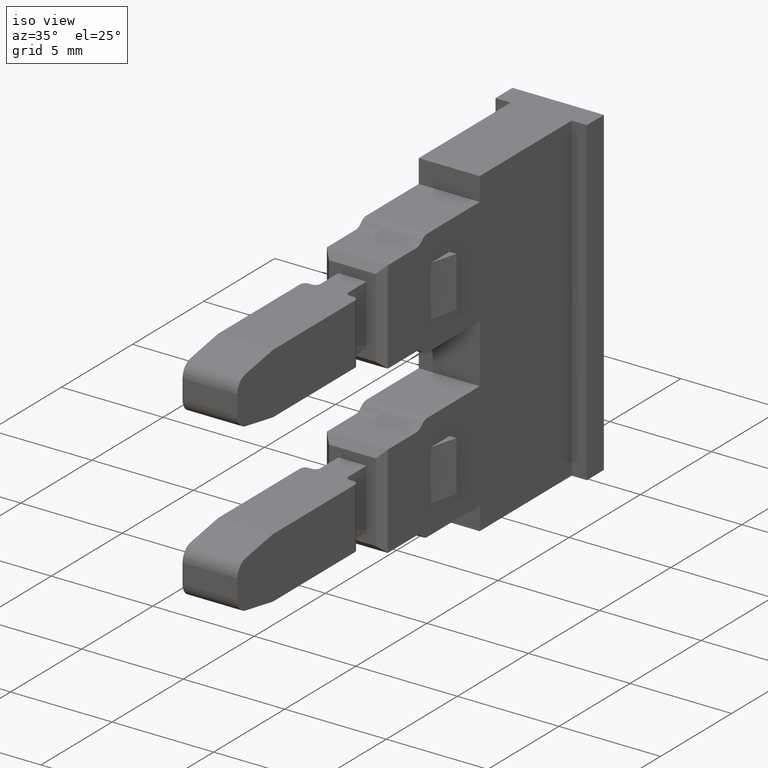
[diagram: clean part render]
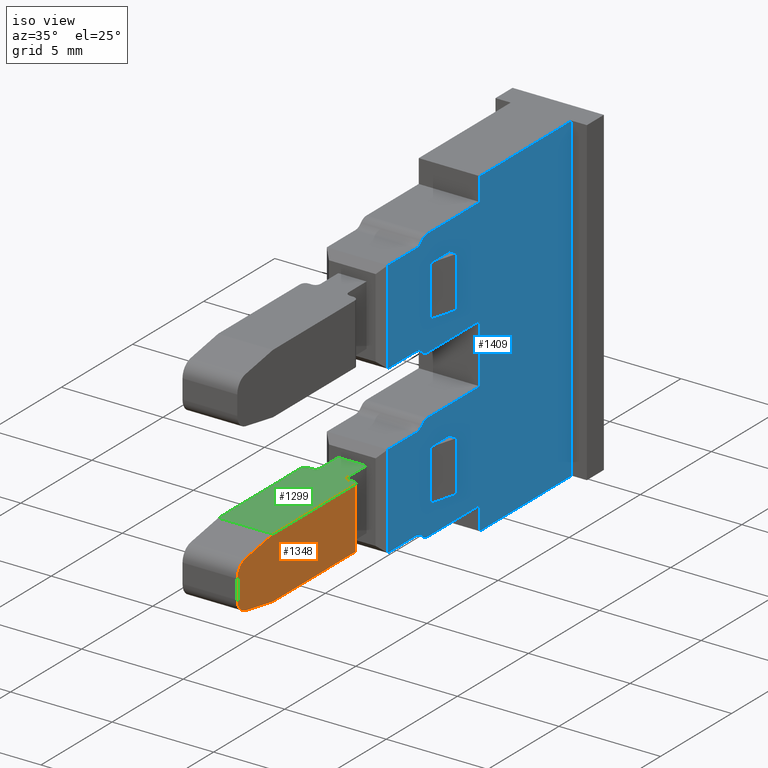
[diagram: same view with three faces highlighted in distinct colors, each labeled with its STEP entity id]
A machine part, iso view with three faces highlighted in distinct colors.
Their STEP definitions:

[orange] entity #1348 — the highlighted planar face has unit normal (-1, 0, -0).
#315 = LINE ( 'NONE', #342, #1774 ) ;
#342 = CARTESIAN_POINT ( 'NONE',  ( 112.0980534371292900, 235.8069065328611200, 160.5691701297483000 ) ) ;
#352 = DIRECTION ( 'NONE',  ( 1.030385130369684300E-041, -3.897577029284496700E-028, -1.000000000000000000 ) ) ;
#439 = DIRECTION ( 'NONE',  ( -1.000000000000000000, -2.643655590711542200E-014, -7.193572994224081300E-015 ) ) ;
#452 = DIRECTION ( 'NONE',  ( -1.982541115402047700E-014, 1.000000000000000000, 0.0000000000000000000 ) ) ;
#453 = CARTESIAN_POINT ( 'NONE',  ( 112.0980534371292800, 236.5069065328611400, 161.5104752290236800 ) ) ;
#481 = DIRECTION ( 'NONE',  ( -1.000000000000000000, -2.643655590711542200E-014, -7.193572994224081300E-015 ) ) ;
#484 = DIRECTION ( 'NONE',  ( -1.982541115402047700E-014, 1.000000000000000000, 0.0000000000000000000 ) ) ;
#494 = CARTESIAN_POINT ( 'NONE',  ( 112.0980534371292800, 236.5069065328611400, 160.5691701297483900 ) ) ;
#562 = PLANE ( 'NONE',  #1820 ) ;
#575 = DIRECTION ( 'NONE',  ( -1.000000000000000000, 3.142629004551421700E-014, -7.193572994222961100E-015 ) ) ;
#594 = FACE_OUTER_BOUND ( 'NONE', #2187, .T. ) ;
#597 = CARTESIAN_POINT ( 'NONE',  ( 112.0980534371293900, 244.7827890380865500, 183.7089333087244800 ) ) ;
#606 = DIRECTION ( 'NONE',  ( -3.142629004551421700E-014, -1.000000000000000000, 0.0000000000000000000 ) ) ;
#868 = CARTESIAN_POINT ( 'NONE',  ( 112.0980534371292900, 236.3853528084943600, 159.8798047026398600 ) ) ;
#874 = CARTESIAN_POINT ( 'NONE',  ( 112.0980534371292900, 235.8069065328611200, 161.5104752290236800 ) ) ;
#914 = CARTESIAN_POINT ( 'NONE',  ( 112.0980534371295200, 244.0815789080036500, 162.5398226793859600 ) ) ;
#919 = CARTESIAN_POINT ( 'NONE',  ( 112.0980534371293400, 238.3134866759712900, 162.5398226793859400 ) ) ;
#958 = CARTESIAN_POINT ( 'NONE',  ( 112.0980534371292800, 236.3853528084943900, 162.1998406561322400 ) ) ;
#959 = CARTESIAN_POINT ( 'NONE',  ( 112.0980534371292900, 235.8069065328611200, 160.5691701297483900 ) ) ;
#1001 = CARTESIAN_POINT ( 'NONE',  ( 112.0980534371295500, 244.0815789080036500, 159.5398226793861100 ) ) ;
#1006 = CARTESIAN_POINT ( 'NONE',  ( 112.0980534371293500, 238.3134866759718300, 159.5398226793861100 ) ) ;
#1077 = EDGE_CURVE ( 'NONE', #2633, #2613, #2689, .T. ) ;
#1082 = EDGE_CURVE ( 'NONE', #2595, #2633, #2261, .T. ) ;
#1101 = EDGE_CURVE ( 'NONE', #2587, #2595, #2325, .T. ) ;
#1128 = EDGE_CURVE ( 'NONE', #2581, #2587, #2395, .T. ) ;
#1149 = EDGE_CURVE ( 'NONE', #2613, #2534, #2455, .T. ) ;
#1298 = EDGE_CURVE ( 'NONE', #2536, #2544, #315, .T. ) ;
#1315 = EDGE_CURVE ( 'NONE', #2536, #2581, #1758, .T. ) ;
#1330 = EDGE_CURVE ( 'NONE', #2534, #2544, #1832, .T. ) ;
#1348 = ADVANCED_FACE ( 'NONE', ( #594 ), #562, .F. ) ;
#1494 = VECTOR ( 'NONE', #2268, 1000.000000000000000 ) ;
#1496 = VECTOR ( 'NONE', #2287, 1000.000000000000000 ) ;
#1535 = VECTOR ( 'NONE', #2427, 1000.000000000000100 ) ;
#1540 = VECTOR ( 'NONE', #2328, 1000.000000000000000 ) ;
#1581 = VECTOR ( 'NONE', #2466, 1000.000000000000100 ) ;
#1758 = CIRCLE ( 'NONE', #1762, 0.7000000000000061700 ) ;
#1762 = AXIS2_PLACEMENT_3D ( 'NONE', #453, #439, #452 ) ;
#1774 = VECTOR ( 'NONE', #352, 1000.000000000000000 ) ;
#1801 = AXIS2_PLACEMENT_3D ( 'NONE', #494, #481, #484 ) ;
#1820 = AXIS2_PLACEMENT_3D ( 'NONE', #597, #575, #606 ) ;
#1832 = CIRCLE ( 'NONE', #1801, 0.7000000000000061700 ) ;
#1894 = ORIENTED_EDGE ( 'NONE', *, *, #1315, .F. ) ;
#1897 = ORIENTED_EDGE ( 'NONE', *, *, #1101, .F. ) ;
#1899 = ORIENTED_EDGE ( 'NONE', *, *, #1149, .F. ) ;
#1902 = ORIENTED_EDGE ( 'NONE', *, *, #1128, .F. ) ;
#1910 = ORIENTED_EDGE ( 'NONE', *, *, #1298, .T. ) ;
#1911 = ORIENTED_EDGE ( 'NONE', *, *, #1077, .F. ) ;
#1937 = ORIENTED_EDGE ( 'NONE', *, *, #1082, .F. ) ;
#2187 = EDGE_LOOP ( 'NONE', ( #1902, #1894, #1910, #2892, #1899, #1911, #1937, #1897 ) ) ;
#2261 = LINE ( 'NONE', #2277, #1496 ) ;
#2268 = DIRECTION ( 'NONE',  ( -3.142629004551421700E-014, -1.000000000000000000, 0.0000000000000000000 ) ) ;
#2277 = CARTESIAN_POINT ( 'NONE',  ( 112.0980534371293700, 244.0815789080036500, 183.7089333087244800 ) ) ;
#2287 = DIRECTION ( 'NONE',  ( 7.193572994222961100E-015, -5.441398086523228100E-029, -1.000000000000000000 ) ) ;
#2289 = CARTESIAN_POINT ( 'NONE',  ( 112.0980534371295600, 244.7827890380865500, 159.5398226793861100 ) ) ;
#2325 = LINE ( 'NONE', #2343, #1540 ) ;
#2328 = DIRECTION ( 'NONE',  ( 3.142629004551421700E-014, 1.000000000000000000, -0.0000000000000000000 ) ) ;
#2343 = CARTESIAN_POINT ( 'NONE',  ( 112.0980534371295500, 244.7827890380865500, 162.5398226793859600 ) ) ;
#2395 = LINE ( 'NONE', #2426, #1535 ) ;
#2426 = CARTESIAN_POINT ( 'NONE',  ( 112.0980534371292800, 236.3853528084944200, 162.1998406561322400 ) ) ;
#2427 = DIRECTION ( 'NONE',  ( 2.835270570850653900E-014, 0.9848077530122268900, 0.1736481776668236700 ) ) ;
#2455 = LINE ( 'NONE', #2463, #1581 ) ;
#2463 = CARTESIAN_POINT ( 'NONE',  ( 112.0980534371293700, 238.3134866759715200, 159.5398226793861900 ) ) ;
#2466 = DIRECTION ( 'NONE',  ( -3.544088213562839200E-014, -0.9848077530122358900, 0.1736481776667719300 ) ) ;
#2534 = VERTEX_POINT ( 'NONE', #868 ) ;
#2536 = VERTEX_POINT ( 'NONE', #874 ) ;
#2544 = VERTEX_POINT ( 'NONE', #959 ) ;
#2581 = VERTEX_POINT ( 'NONE', #958 ) ;
#2587 = VERTEX_POINT ( 'NONE', #919 ) ;
#2595 = VERTEX_POINT ( 'NONE', #914 ) ;
#2613 = VERTEX_POINT ( 'NONE', #1006 ) ;
#2633 = VERTEX_POINT ( 'NONE', #1001 ) ;
#2689 = LINE ( 'NONE', #2289, #1494 ) ;
#2892 = ORIENTED_EDGE ( 'NONE', *, *, #1330, .F. ) ;

[blue] entity #1409 — the highlighted planar face has unit normal (1, 0, 0).
#1 = DIRECTION ( 'NONE',  ( 2.775557561562734800E-014, -1.000000000000000000, 0.0000000000000000000 ) ) ;
#2 = CARTESIAN_POINT ( 'NONE',  ( 112.2452529172786200, 249.5101602476015000, 171.5398226793865000 ) ) ;
#4 = CARTESIAN_POINT ( 'NONE',  ( 112.2452529172786800, 249.1566068570084800, 164.0933760699795100 ) ) ;
#7 = LINE ( 'NONE', #2, #1644 ) ;
#18 = DIRECTION ( 'NONE',  ( 2.643655590711540000E-014, -1.000000000000000000, -0.0000000000000000000 ) ) ;
#23 = DIRECTION ( 'NONE',  ( -0.0000000000000000000, -0.7071067811865150400, -0.7071067811865799900 ) ) ;
#24 = DIRECTION ( 'NONE',  ( -1.000000000000000000, -2.643655590711540000E-014, -7.193572994224081300E-015 ) ) ;
#28 = LINE ( 'NONE', #4, #1645 ) ;
#33 = CARTESIAN_POINT ( 'NONE',  ( 112.2452529172786900, 248.1959466852285100, 163.8398226793859700 ) ) ;
#47 = LINE ( 'NONE', #50, #1641 ) ;
#50 = CARTESIAN_POINT ( 'NONE',  ( 112.2452529172783200, 246.1815789080018800, 222.8398226793859700 ) ) ;
#52 = LINE ( 'NONE', #78, #1626 ) ;
#60 = CARTESIAN_POINT ( 'NONE',  ( 112.2452529172788300, 246.1815789080017400, 163.3398226793860300 ) ) ;
#61 = DIRECTION ( 'NONE',  ( 7.193572994224081300E-015, 1.901732946337204600E-028, -1.000000000000000000 ) ) ;
#62 = DIRECTION ( 'NONE',  ( -2.643655590711540000E-014, 1.000000000000000000, 0.0000000000000000000 ) ) ;
#78 = CARTESIAN_POINT ( 'NONE',  ( 112.2452529172786500, 249.5101602476015000, 166.5898226793864900 ) ) ;
#79 = LINE ( 'NONE', #82, #1630 ) ;
#82 = CARTESIAN_POINT ( 'NONE',  ( 112.2452529172785300, 252.6435672046369800, 175.4398226793854900 ) ) ;
#87 = DIRECTION ( 'NONE',  ( -0.0000000000000000000, 0.0000000000000000000, 1.000000000000000000 ) ) ;
#94 = CARTESIAN_POINT ( 'NONE',  ( 112.2452529172785900, 250.5101602476015900, 170.4898226793856700 ) ) ;
#96 = LINE ( 'NONE', #121, #1698 ) ;
#109 = DIRECTION ( 'NONE',  ( 2.775557561562734800E-014, -1.000000000000000000, 0.0000000000000000000 ) ) ;
#110 = DIRECTION ( 'NONE',  ( 2.775557561563659400E-014, -1.000000000000000000, 0.0000000000000000000 ) ) ;
#115 = CARTESIAN_POINT ( 'NONE',  ( 112.2452529172787600, 248.1959466852285100, 158.2398226793859800 ) ) ;
#116 = DIRECTION ( 'NONE',  ( -1.000000000000000000, -2.643655590711540000E-014, -7.193572994224081300E-015 ) ) ;
#117 = DIRECTION ( 'NONE',  ( 2.643655590711540000E-014, -1.000000000000000000, -0.0000000000000000000 ) ) ;
#121 = CARTESIAN_POINT ( 'NONE',  ( 112.2452529172786100, 249.5101602476015000, 173.0398226793859900 ) ) ;
#130 = CARTESIAN_POINT ( 'NONE',  ( 112.2452529172786800, 248.1959466852285100, 166.4398226793865100 ) ) ;
#132 = DIRECTION ( 'NONE',  ( -1.000000000000000000, -2.643655590711540000E-014, -7.193572994224081300E-015 ) ) ;
#137 = DIRECTION ( 'NONE',  ( -7.193572994224081300E-015, -1.901732946337204600E-028, 1.000000000000000000 ) ) ;
#144 = DIRECTION ( 'NONE',  ( -0.0000000000000000000, -1.000000000000000000, -0.0000000000000000000 ) ) ;
#145 = LINE ( 'NONE', #193, #1664 ) ;
#146 = LINE ( 'NONE', #170, #1693 ) ;
#169 = CARTESIAN_POINT ( 'NONE',  ( 112.2452529172779900, 259.1101602476019800, 222.8398226793859700 ) ) ;
#170 = CARTESIAN_POINT ( 'NONE',  ( 112.2452529172785800, 249.2101602476016400, 159.7898226793856800 ) ) ;
#174 = LINE ( 'NONE', #169, #1662 ) ;
#175 = LINE ( 'NONE', #208, #1686 ) ;
#177 = CARTESIAN_POINT ( 'NONE',  ( 112.2452529172786800, 249.5101602476015000, 163.6898226793860000 ) ) ;
#182 = DIRECTION ( 'NONE',  ( 2.643655590711540000E-014, -1.000000000000000000, -0.0000000000000000000 ) ) ;
#183 = CARTESIAN_POINT ( 'NONE',  ( 112.2452529172785300, 250.5101602476015900, 167.9898226793856700 ) ) ;
#187 = LINE ( 'NONE', #183, #1695 ) ;
#191 = LINE ( 'NONE', #251, #1690 ) ;
#193 = CARTESIAN_POINT ( 'NONE',  ( 112.2452529172786500, 249.5101602476015000, 166.9398226793865100 ) ) ;
#196 = DIRECTION ( 'NONE',  ( 0.0000000000000000000, 0.0000000000000000000, 1.000000000000000000 ) ) ;
#202 = LINE ( 'NONE', #177, #1665 ) ;
#205 = DIRECTION ( 'NONE',  ( -2.643655590711540000E-014, 1.000000000000000000, 0.0000000000000000000 ) ) ;
#208 = CARTESIAN_POINT ( 'NONE',  ( 112.2452529172787100, 249.5101602476015000, 158.7398226793860900 ) ) ;
#211 = LINE ( 'NONE', #266, #1704 ) ;
#219 = DIRECTION ( 'NONE',  ( -2.643655590711540000E-014, 1.000000000000000000, 0.0000000000000000000 ) ) ;
#227 = CARTESIAN_POINT ( 'NONE',  ( 112.2452529172786100, 249.5101602476015000, 171.8898226793864700 ) ) ;
#231 = DIRECTION ( 'NONE',  ( -0.0000000000000000000, -1.000000000000000000, -0.0000000000000000000 ) ) ;
#232 = CARTESIAN_POINT ( 'NONE',  ( 112.2452529172785800, 250.5101602476016500, 159.7898226793856800 ) ) ;
#233 = LINE ( 'NONE', #237, #1677 ) ;
#234 = DIRECTION ( 'NONE',  ( -2.775557561562888800E-014, 1.000000000000000000, 0.0000000000000000000 ) ) ;
#237 = CARTESIAN_POINT ( 'NONE',  ( 112.2452529172786800, 249.5101602476015000, 163.3398226793859700 ) ) ;
#239 = LINE ( 'NONE', #232, #1681 ) ;
#240 = DIRECTION ( 'NONE',  ( 2.643655590711540000E-014, -1.000000000000000000, -0.0000000000000000000 ) ) ;
#242 = CARTESIAN_POINT ( 'NONE',  ( 112.2452529172786800, 248.9601602476015500, 163.1898226793860000 ) ) ;
#243 = DIRECTION ( 'NONE',  ( -1.000000000000000000, -2.643655590711540000E-014, -7.193572994224081300E-015 ) ) ;
#250 = DIRECTION ( 'NONE',  ( -1.000000000000000000, -2.643655590711534900E-014, -7.193572994224081300E-015 ) ) ;
#251 = CARTESIAN_POINT ( 'NONE',  ( 112.2452529172785800, 249.2101602476016400, 162.2898226793856800 ) ) ;
#253 = DIRECTION ( 'NONE',  ( -0.0000000000000000000, -1.000000000000000000, -0.0000000000000000000 ) ) ;
#255 = DIRECTION ( 'NONE',  ( 0.0000000000000000000, 0.0000000000000000000, 1.000000000000000000 ) ) ;
#257 = LINE ( 'NONE', #227, #1666 ) ;
#259 = LINE ( 'NONE', #287, #1764 ) ;
#260 = CARTESIAN_POINT ( 'NONE',  ( 112.2452529172787200, 248.9601602476020000, 158.8898226793860100 ) ) ;
#263 = DIRECTION ( 'NONE',  ( 2.775557561562888800E-014, -1.000000000000000000, 0.0000000000000000000 ) ) ;
#264 = DIRECTION ( 'NONE',  ( 2.643655590711540000E-014, -1.000000000000000000, -0.0000000000000000000 ) ) ;
#266 = CARTESIAN_POINT ( 'NONE',  ( 112.2452529172785300, 249.2101602476015800, 167.9898226793856700 ) ) ;
#267 = DIRECTION ( 'NONE',  ( -2.775557561562888800E-014, 1.000000000000000000, 0.0000000000000000000 ) ) ;
#270 = DIRECTION ( 'NONE',  ( -1.000000000000000000, -2.643655590711534900E-014, -7.193572994224081300E-015 ) ) ;
#274 = CARTESIAN_POINT ( 'NONE',  ( 112.2452529172787200, 249.5101602476015000, 157.2398226793859500 ) ) ;
#285 = DIRECTION ( 'NONE',  ( -2.643655590711540000E-014, 1.000000000000000000, 0.0000000000000000000 ) ) ;
#287 = CARTESIAN_POINT ( 'NONE',  ( 112.2452529172786300, 252.6435672046369800, 154.8398226793870000 ) ) ;
#288 = DIRECTION ( 'NONE',  ( -0.0000000000000000000, 0.0000000000000000000, 1.000000000000000000 ) ) ;
#308 = CARTESIAN_POINT ( 'NONE',  ( 112.2452529172786600, 248.9601602476015500, 167.0898226793864900 ) ) ;
#309 = LINE ( 'NONE', #274, #1741 ) ;
#317 = LINE ( 'NONE', #321, #1749 ) ;
#321 = CARTESIAN_POINT ( 'NONE',  ( 112.2452529172785800, 249.2101602476016400, 159.7898226793856800 ) ) ;
#336 = DIRECTION ( 'NONE',  ( 0.0000000000000000000, 0.0000000000000000000, 1.000000000000000000 ) ) ;
#340 = LINE ( 'NONE', #356, #1728 ) ;
#353 = CARTESIAN_POINT ( 'NONE',  ( 112.2452529172785300, 249.2101602476015800, 167.9898226793856700 ) ) ;
#356 = CARTESIAN_POINT ( 'NONE',  ( 112.2452529172785300, 249.2101602476015800, 167.9898226793856700 ) ) ;
#358 = DIRECTION ( 'NONE',  ( 0.0000000000000000000, 0.0000000000000000000, 1.000000000000000000 ) ) ;
#420 = CARTESIAN_POINT ( 'NONE',  ( 112.2452529172785300, 249.2101602476015800, 170.4898226793856700 ) ) ;
#426 = DIRECTION ( 'NONE',  ( -0.0000000000000000000, -1.000000000000000000, -0.0000000000000000000 ) ) ;
#454 = CARTESIAN_POINT ( 'NONE',  ( 112.2452529172785300, 252.6435672046369800, 171.8898226793864700 ) ) ;
#456 = LINE ( 'NONE', #420, #1740 ) ;
#486 = CARTESIAN_POINT ( 'NONE',  ( 112.2452529172787100, 249.5101602476015000, 158.3898226793860100 ) ) ;
#499 = DIRECTION ( 'NONE',  ( -2.643655590711540000E-014, 1.000000000000000000, 0.0000000000000000000 ) ) ;
#503 = LINE ( 'NONE', #486, #1808 ) ;
#573 = DIRECTION ( 'NONE',  ( 7.193572994224081300E-015, 1.901732946337204600E-028, -1.000000000000000000 ) ) ;
#593 = CARTESIAN_POINT ( 'NONE',  ( 112.2452529172783200, 246.1815789080016800, 222.8398226793859700 ) ) ;
#595 = LINE ( 'NONE', #593, #1811 ) ;
#695 = CARTESIAN_POINT ( 'NONE',  ( 112.2452529172785800, 249.2101602476016400, 159.7898226793856800 ) ) ;
#864 = FACE_BOUND ( 'NONE', #2237, .T. ) ;
#866 = DIRECTION ( 'NONE',  ( -2.643655590711540000E-014, 1.000000000000000000, 0.0000000000000000000 ) ) ;
#875 = FACE_OUTER_BOUND ( 'NONE', #2157, .T. ) ;
#877 = CARTESIAN_POINT ( 'NONE',  ( 112.2452529172782400, 249.5101602476015000, 222.8398226793859700 ) ) ;
#884 = FACE_BOUND ( 'NONE', #2203, .T. ) ;
#890 = DIRECTION ( 'NONE',  ( 1.000000000000000000, 2.643655590711540000E-014, 7.193572994224081300E-015 ) ) ;
#899 = PLANE ( 'NONE',  #1866 ) ;
#921 = CARTESIAN_POINT ( 'NONE',  ( 112.2452529172785200, 252.6435672046369800, 173.0398226793859900 ) ) ;
#930 = CARTESIAN_POINT ( 'NONE',  ( 112.2452529172786200, 248.6066068570087000, 171.7433760699797500 ) ) ;
#951 = CARTESIAN_POINT ( 'NONE',  ( 112.2452529172786800, 248.6066068570083600, 166.7362692887932100 ) ) ;
#956 = CARTESIAN_POINT ( 'NONE',  ( 112.2452529172787300, 246.1815789080018800, 171.5398226793864800 ) ) ;
#966 = CARTESIAN_POINT ( 'NONE',  ( 112.2452529172783500, 259.1101602476019800, 173.0398226793859900 ) ) ;
#967 = CARTESIAN_POINT ( 'NONE',  ( 112.2452529172785800, 249.2101602476016400, 162.2898226793856800 ) ) ;
#969 = CARTESIAN_POINT ( 'NONE',  ( 112.2452529172786900, 248.1959466852285100, 166.9398226793865100 ) ) ;
#972 = CARTESIAN_POINT ( 'NONE',  ( 112.2452529172787300, 248.6066068570087600, 158.5362692887926500 ) ) ;
#975 = CARTESIAN_POINT ( 'NONE',  ( 112.2452529172787600, 248.1959466852285100, 158.7398226793860400 ) ) ;
#979 = CARTESIAN_POINT ( 'NONE',  ( 112.2452529172786300, 252.6435672046369800, 157.2398226793859500 ) ) ;
#984 = CARTESIAN_POINT ( 'NONE',  ( 112.2452529172786500, 250.5101602476016500, 162.2898226793856800 ) ) ;
#986 = CARTESIAN_POINT ( 'NONE',  ( 112.2452529172787500, 248.5495000758218400, 158.5933760699792600 ) ) ;
#988 = CARTESIAN_POINT ( 'NONE',  ( 112.2452529172786600, 248.5495000758219000, 166.7933760699797300 ) ) ;
#989 = CARTESIAN_POINT ( 'NONE',  ( 112.2452529172786300, 248.1959466852284800, 171.5398226793865000 ) ) ;
#996 = CARTESIAN_POINT ( 'NONE',  ( 112.2452529172785900, 252.6435672046369800, 163.6898226793860000 ) ) ;
#997 = CARTESIAN_POINT ( 'NONE',  ( 112.2452529172786900, 248.5495000758219000, 163.4862692887928400 ) ) ;
#999 = CARTESIAN_POINT ( 'NONE',  ( 112.2452529172786800, 246.1815789080018500, 166.9398226793865100 ) ) ;
#1002 = CARTESIAN_POINT ( 'NONE',  ( 112.2452529172786200, 248.5495000758218400, 171.6862692887932600 ) ) ;
#1007 = CARTESIAN_POINT ( 'NONE',  ( 112.2452529172785300, 249.2101602476015800, 170.4898226793856700 ) ) ;
#1009 = CARTESIAN_POINT ( 'NONE',  ( 112.2452529172787200, 248.9601602476019800, 158.3898226793860100 ) ) ;
#1011 = CARTESIAN_POINT ( 'NONE',  ( 112.2452529172786800, 248.6066068570083000, 163.5433760699792700 ) ) ;
#1014 = CARTESIAN_POINT ( 'NONE',  ( 112.2452529172786200, 248.9601602476020000, 171.8898226793864700 ) ) ;
#1015 = CARTESIAN_POINT ( 'NONE',  ( 112.2452529172785200, 259.1101602476019800, 157.2398226793859500 ) ) ;
#1029 = CARTESIAN_POINT ( 'NONE',  ( 112.2452529172785300, 250.5101602476015900, 167.9898226793856700 ) ) ;
#1032 = DIRECTION ( 'NONE',  ( -0.0000000000000000000, -0.7071067811866451600, -0.7071067811864498700 ) ) ;
#1035 = DIRECTION ( 'NONE',  ( -0.0000000000000000000, 0.7071067811866451600, -0.7071067811864498700 ) ) ;
#1036 = CARTESIAN_POINT ( 'NONE',  ( 112.2452529172781700, 252.6435672046369800, 222.8398226793859700 ) ) ;
#1046 = DIRECTION ( 'NONE',  ( 7.193572994224081300E-015, 1.901732946337204600E-028, -1.000000000000000000 ) ) ;
#1050 = CARTESIAN_POINT ( 'NONE',  ( 112.2452529172786200, 248.1959466852285100, 172.0398226793865000 ) ) ;
#1051 = LINE ( 'NONE', #1073, #1593 ) ;
#1056 = DIRECTION ( 'NONE',  ( 2.775557561563659400E-014, -1.000000000000000000, 0.0000000000000000000 ) ) ;
#1062 = LINE ( 'NONE', #1069, #1622 ) ;
#1067 = DIRECTION ( 'NONE',  ( -1.000000000000000000, -2.643655590711540000E-014, -7.193572994224081300E-015 ) ) ;
#1069 = CARTESIAN_POINT ( 'NONE',  ( 112.2452529172786200, 249.1566068570084800, 172.2933760699795000 ) ) ;
#1073 = CARTESIAN_POINT ( 'NONE',  ( 112.2452529172787500, 249.1566068570084800, 157.9862692887930100 ) ) ;
#1074 = LINE ( 'NONE', #1036, #1596 ) ;
#1125 = EDGE_CURVE ( 'NONE', #2642, #2577, #2399, .T. ) ;
#1163 = EDGE_CURVE ( 'NONE', #2561, #2652, #1590, .T. ) ;
#1170 = EDGE_CURVE ( 'NONE', #2605, #2612, #1051, .T. ) ;
#1172 = EDGE_CURVE ( 'NONE', #2700, #2630, #1074, .T. ) ;
#1175 = EDGE_CURVE ( 'NONE', #2615, #2609, #1595, .T. ) ;
#1180 = EDGE_CURVE ( 'NONE', #2561, #2615, #1062, .T. ) ;
#1182 = EDGE_CURVE ( 'NONE', #2607, #2692, #1646, .T. ) ;
#1187 = EDGE_CURVE ( 'NONE', #2609, #2566, #7, .T. ) ;
#1189 = EDGE_CURVE ( 'NONE', #2622, #2607, #28, .T. ) ;
#1199 = EDGE_CURVE ( 'NONE', #2566, #2629, #47, .T. ) ;
#1208 = EDGE_CURVE ( 'NONE', #2699, #2700, #52, .T. ) ;
#1210 = EDGE_CURVE ( 'NONE', #2678, #2601, #79, .T. ) ;
#1214 = EDGE_CURVE ( 'NONE', #2661, #2642, #1643, .T. ) ;
#1216 = EDGE_CURVE ( 'NONE', #2647, #2601, #96, .T. ) ;
#1221 = EDGE_CURVE ( 'NONE', #2668, #2605, #1696, .T. ) ;
#1230 = EDGE_CURVE ( 'NONE', #2610, #2647, #174, .T. ) ;
#1232 = EDGE_CURVE ( 'NONE', #2702, #2691, #146, .T. ) ;
#1239 = EDGE_CURVE ( 'NONE', #2629, #2661, #145, .T. ) ;
#1242 = EDGE_CURVE ( 'NONE', #2693, #2668, #175, .T. ) ;
#1245 = EDGE_CURVE ( 'NONE', #2630, #2697, #202, .T. ) ;
#1248 = EDGE_CURVE ( 'NONE', #2655, #2674, #187, .T. ) ;
#1254 = EDGE_CURVE ( 'NONE', #2671, #2654, #191, .T. ) ;
#1255 = EDGE_CURVE ( 'NONE', #2655, #2676, #211, .T. ) ;
#1261 = EDGE_CURVE ( 'NONE', #2648, #2612, #1667, .T. ) ;
#1262 = EDGE_CURVE ( 'NONE', #2622, #2697, #1674, .T. ) ;
#1263 = EDGE_CURVE ( 'NONE', #2678, #2652, #257, .T. ) ;
#1265 = EDGE_CURVE ( 'NONE', #2702, #2671, #239, .T. ) ;
#1268 = EDGE_CURVE ( 'NONE', #2692, #2673, #233, .T. ) ;
#1272 = EDGE_CURVE ( 'NONE', #2675, #2610, #309, .T. ) ;
#1278 = EDGE_CURVE ( 'NONE', #2675, #2705, #259, .T. ) ;
#1283 = EDGE_CURVE ( 'NONE', #2699, #2577, #1744, .T. ) ;
#1290 = EDGE_CURVE ( 'NONE', #2676, #2625, #340, .T. ) ;
#1295 = EDGE_CURVE ( 'NONE', #2691, #2654, #317, .T. ) ;
#1316 = EDGE_CURVE ( 'NONE', #2674, #2625, #456, .T. ) ;
#1329 = EDGE_CURVE ( 'NONE', #2648, #2705, #503, .T. ) ;
#1351 = EDGE_CURVE ( 'NONE', #2673, #2693, #595, .T. ) ;
#1409 = ADVANCED_FACE ( 'NONE', ( #884, #864, #875 ), #899, .T. ) ;
#1451 = CARTESIAN_POINT ( 'NONE',  ( 112.2452529172785600, 252.6435672046369800, 166.5898226793864900 ) ) ;
#1454 = CARTESIAN_POINT ( 'NONE',  ( 112.2452529172786200, 252.6435672046369800, 158.3898226793860100 ) ) ;
#1459 = CARTESIAN_POINT ( 'NONE',  ( 112.2452529172786900, 248.9601602476015500, 163.6898226793860000 ) ) ;
#1470 = CARTESIAN_POINT ( 'NONE',  ( 112.2452529172787500, 246.1815789080018000, 158.7398226793860900 ) ) ;
#1474 = CARTESIAN_POINT ( 'NONE',  ( 112.2452529172787100, 248.1959466852284800, 163.3398226793859700 ) ) ;
#1485 = CARTESIAN_POINT ( 'NONE',  ( 112.2452529172785800, 250.5101602476016500, 159.7898226793856800 ) ) ;
#1487 = CARTESIAN_POINT ( 'NONE',  ( 112.2452529172786600, 248.9601602476015500, 166.5898226793864900 ) ) ;
#1523 = VECTOR ( 'NONE', #2423, 1000.000000000000000 ) ;
#1573 = AXIS2_PLACEMENT_3D ( 'NONE', #2523, #2505, #2507 ) ;
#1590 = CIRCLE ( 'NONE', #1573, 0.5000000000000004400 ) ;
#1593 = VECTOR ( 'NONE', #1035, 1000.000000000000000 ) ;
#1595 = CIRCLE ( 'NONE', #1598, 0.4999999999998616700 ) ;
#1596 = VECTOR ( 'NONE', #1046, 1000.000000000000000 ) ;
#1598 = AXIS2_PLACEMENT_3D ( 'NONE', #1050, #1067, #1056 ) ;
#1622 = VECTOR ( 'NONE', #1032, 1000.000000000000000 ) ;
#1626 = VECTOR ( 'NONE', #62, 1000.000000000000000 ) ;
#1630 = VECTOR ( 'NONE', #87, 1000.000000000000000 ) ;
#1634 = AXIS2_PLACEMENT_3D ( 'NONE', #33, #24, #1 ) ;
#1641 = VECTOR ( 'NONE', #61, 1000.000000000000000 ) ;
#1643 = CIRCLE ( 'NONE', #1659, 0.5000000000000282000 ) ;
#1644 = VECTOR ( 'NONE', #18, 1000.000000000000000 ) ;
#1645 = VECTOR ( 'NONE', #23, 1000.000000000000000 ) ;
#1646 = CIRCLE ( 'NONE', #1634, 0.5000000000000282000 ) ;
#1659 = AXIS2_PLACEMENT_3D ( 'NONE', #130, #116, #109 ) ;
#1662 = VECTOR ( 'NONE', #137, 1000.000000000000000 ) ;
#1664 = VECTOR ( 'NONE', #205, 1000.000000000000000 ) ;
#1665 = VECTOR ( 'NONE', #182, 1000.000000000000000 ) ;
#1666 = VECTOR ( 'NONE', #264, 1000.000000000000000 ) ;
#1667 = CIRCLE ( 'NONE', #1670, 0.5000000000000004400 ) ;
#1670 = AXIS2_PLACEMENT_3D ( 'NONE', #260, #243, #263 ) ;
#1674 = CIRCLE ( 'NONE', #1675, 0.5000000000000004400 ) ;
#1675 = AXIS2_PLACEMENT_3D ( 'NONE', #242, #250, #234 ) ;
#1677 = VECTOR ( 'NONE', #240, 1000.000000000000000 ) ;
#1679 = AXIS2_PLACEMENT_3D ( 'NONE', #115, #132, #110 ) ;
#1681 = VECTOR ( 'NONE', #255, 1000.000000000000000 ) ;
#1686 = VECTOR ( 'NONE', #219, 1000.000000000000000 ) ;
#1690 = VECTOR ( 'NONE', #231, 1000.000000000000000 ) ;
#1693 = VECTOR ( 'NONE', #144, 1000.000000000000000 ) ;
#1695 = VECTOR ( 'NONE', #196, 1000.000000000000000 ) ;
#1696 = CIRCLE ( 'NONE', #1679, 0.4999999999998616700 ) ;
#1698 = VECTOR ( 'NONE', #117, 1000.000000000000000 ) ;
#1704 = VECTOR ( 'NONE', #253, 1000.000000000000000 ) ;
#1713 = AXIS2_PLACEMENT_3D ( 'NONE', #308, #270, #267 ) ;
#1728 = VECTOR ( 'NONE', #336, 1000.000000000000000 ) ;
#1740 = VECTOR ( 'NONE', #426, 1000.000000000000000 ) ;
#1741 = VECTOR ( 'NONE', #285, 1000.000000000000000 ) ;
#1744 = CIRCLE ( 'NONE', #1713, 0.5000000000000004400 ) ;
#1749 = VECTOR ( 'NONE', #358, 1000.000000000000000 ) ;
#1764 = VECTOR ( 'NONE', #288, 1000.000000000000000 ) ;
#1808 = VECTOR ( 'NONE', #499, 1000.000000000000000 ) ;
#1811 = VECTOR ( 'NONE', #573, 1000.000000000000000 ) ;
#1866 = AXIS2_PLACEMENT_3D ( 'NONE', #877, #890, #866 ) ;
#2157 = EDGE_LOOP ( 'NONE', ( #2744, #2756, #2757, #2748, #2722, #2685, #2707, #2715, #2755, #2711, #2734, #2759, #2723, #2724, #2760, #2658, #2741, #2729, #2737, #2740, #2719, #2732, #2728, #2698, #2716, #2742, #2713, #2664 ) ) ;
#2203 = EDGE_LOOP ( 'NONE', ( #2752, #2727, #2663, #2721 ) ) ;
#2237 = EDGE_LOOP ( 'NONE', ( #2739, #2733, #2763, #2720 ) ) ;
#2399 = LINE ( 'NONE', #2420, #1523 ) ;
#2420 = CARTESIAN_POINT ( 'NONE',  ( 112.2452529172786600, 249.1566068570084800, 166.1862692887930600 ) ) ;
#2423 = DIRECTION ( 'NONE',  ( -0.0000000000000000000, 0.7071067811865150400, -0.7071067811865799900 ) ) ;
#2505 = DIRECTION ( 'NONE',  ( -1.000000000000000000, -2.643655590711540000E-014, -7.193572994224081300E-015 ) ) ;
#2507 = DIRECTION ( 'NONE',  ( 2.775557561562888800E-014, -1.000000000000000000, 0.0000000000000000000 ) ) ;
#2523 = CARTESIAN_POINT ( 'NONE',  ( 112.2452529172786200, 248.9601602476020000, 171.3898226793865000 ) ) ;
#2561 = VERTEX_POINT ( 'NONE', #930 ) ;
#2566 = VERTEX_POINT ( 'NONE', #956 ) ;
#2577 = VERTEX_POINT ( 'NONE', #951 ) ;
#2601 = VERTEX_POINT ( 'NONE', #921 ) ;
#2605 = VERTEX_POINT ( 'NONE', #986 ) ;
#2607 = VERTEX_POINT ( 'NONE', #997 ) ;
#2609 = VERTEX_POINT ( 'NONE', #989 ) ;
#2610 = VERTEX_POINT ( 'NONE', #1015 ) ;
#2612 = VERTEX_POINT ( 'NONE', #972 ) ;
#2615 = VERTEX_POINT ( 'NONE', #1002 ) ;
#2622 = VERTEX_POINT ( 'NONE', #1011 ) ;
#2625 = VERTEX_POINT ( 'NONE', #1007 ) ;
#2629 = VERTEX_POINT ( 'NONE', #999 ) ;
#2630 = VERTEX_POINT ( 'NONE', #996 ) ;
#2642 = VERTEX_POINT ( 'NONE', #988 ) ;
#2647 = VERTEX_POINT ( 'NONE', #966 ) ;
#2648 = VERTEX_POINT ( 'NONE', #1009 ) ;
#2652 = VERTEX_POINT ( 'NONE', #1014 ) ;
#2654 = VERTEX_POINT ( 'NONE', #967 ) ;
#2655 = VERTEX_POINT ( 'NONE', #1029 ) ;
#2658 = ORIENTED_EDGE ( 'NONE', *, *, #1125, .T. ) ;
#2661 = VERTEX_POINT ( 'NONE', #969 ) ;
#2663 = ORIENTED_EDGE ( 'NONE', *, *, #1254, .F. ) ;
#2664 = ORIENTED_EDGE ( 'NONE', *, *, #1170, .T. ) ;
#2668 = VERTEX_POINT ( 'NONE', #975 ) ;
#2671 = VERTEX_POINT ( 'NONE', #984 ) ;
#2673 = VERTEX_POINT ( 'NONE', #60 ) ;
#2674 = VERTEX_POINT ( 'NONE', #94 ) ;
#2675 = VERTEX_POINT ( 'NONE', #979 ) ;
#2676 = VERTEX_POINT ( 'NONE', #353 ) ;
#2678 = VERTEX_POINT ( 'NONE', #454 ) ;
#2685 = ORIENTED_EDGE ( 'NONE', *, *, #1216, .T. ) ;
#2691 = VERTEX_POINT ( 'NONE', #695 ) ;
#2692 = VERTEX_POINT ( 'NONE', #1474 ) ;
#2693 = VERTEX_POINT ( 'NONE', #1470 ) ;
#2697 = VERTEX_POINT ( 'NONE', #1459 ) ;
#2698 = ORIENTED_EDGE ( 'NONE', *, *, #1268, .T. ) ;
#2699 = VERTEX_POINT ( 'NONE', #1487 ) ;
#2700 = VERTEX_POINT ( 'NONE', #1451 ) ;
#2702 = VERTEX_POINT ( 'NONE', #1485 ) ;
#2705 = VERTEX_POINT ( 'NONE', #1454 ) ;
#2707 = ORIENTED_EDGE ( 'NONE', *, *, #1210, .F. ) ;
#2711 = ORIENTED_EDGE ( 'NONE', *, *, #1180, .T. ) ;
#2713 = ORIENTED_EDGE ( 'NONE', *, *, #1221, .T. ) ;
#2715 = ORIENTED_EDGE ( 'NONE', *, *, #1263, .T. ) ;
#2716 = ORIENTED_EDGE ( 'NONE', *, *, #1351, .T. ) ;
#2719 = ORIENTED_EDGE ( 'NONE', *, *, #1262, .F. ) ;
#2720 = ORIENTED_EDGE ( 'NONE', *, *, #1248, .F. ) ;
#2721 = ORIENTED_EDGE ( 'NONE', *, *, #1265, .F. ) ;
#2722 = ORIENTED_EDGE ( 'NONE', *, *, #1230, .T. ) ;
#2723 = ORIENTED_EDGE ( 'NONE', *, *, #1199, .T. ) ;
#2724 = ORIENTED_EDGE ( 'NONE', *, *, #1239, .T. ) ;
#2727 = ORIENTED_EDGE ( 'NONE', *, *, #1295, .T. ) ;
#2728 = ORIENTED_EDGE ( 'NONE', *, *, #1182, .T. ) ;
#2729 = ORIENTED_EDGE ( 'NONE', *, *, #1208, .T. ) ;
#2732 = ORIENTED_EDGE ( 'NONE', *, *, #1189, .T. ) ;
#2733 = ORIENTED_EDGE ( 'NONE', *, *, #1290, .T. ) ;
#2734 = ORIENTED_EDGE ( 'NONE', *, *, #1175, .T. ) ;
#2737 = ORIENTED_EDGE ( 'NONE', *, *, #1172, .T. ) ;
#2739 = ORIENTED_EDGE ( 'NONE', *, *, #1255, .T. ) ;
#2740 = ORIENTED_EDGE ( 'NONE', *, *, #1245, .T. ) ;
#2741 = ORIENTED_EDGE ( 'NONE', *, *, #1283, .F. ) ;
#2742 = ORIENTED_EDGE ( 'NONE', *, *, #1242, .T. ) ;
#2744 = ORIENTED_EDGE ( 'NONE', *, *, #1261, .F. ) ;
#2748 = ORIENTED_EDGE ( 'NONE', *, *, #1272, .T. ) ;
#2752 = ORIENTED_EDGE ( 'NONE', *, *, #1232, .T. ) ;
#2755 = ORIENTED_EDGE ( 'NONE', *, *, #1163, .F. ) ;
#2756 = ORIENTED_EDGE ( 'NONE', *, *, #1329, .T. ) ;
#2757 = ORIENTED_EDGE ( 'NONE', *, *, #1278, .F. ) ;
#2759 = ORIENTED_EDGE ( 'NONE', *, *, #1187, .T. ) ;
#2760 = ORIENTED_EDGE ( 'NONE', *, *, #1214, .T. ) ;
#2763 = ORIENTED_EDGE ( 'NONE', *, *, #1316, .F. ) ;

[green] entity #1299 — the highlighted planar face has unit normal (0, 0, -1).
#350 = FACE_OUTER_BOUND ( 'NONE', #2168, .T. ) ;
#359 = CARTESIAN_POINT ( 'NONE',  ( 110.0552529172780100, 248.6101602476015000, 162.5398226793859900 ) ) ;
#371 = DIRECTION ( 'NONE',  ( 7.193572994223691600E-015, 1.504573015594193100E-014, -1.000000000000000000 ) ) ;
#375 = DIRECTION ( 'NONE',  ( 0.0000000000000000000, 1.000000000000000000, 1.504573015594193100E-014 ) ) ;
#381 = PLANE ( 'NONE',  #1736 ) ;
#905 = CARTESIAN_POINT ( 'NONE',  ( 111.8480534371295200, 244.3315789080036500, 162.5398226793859400 ) ) ;
#912 = CARTESIAN_POINT ( 'NONE',  ( 110.0552529172787500, 245.8315789080019200, 162.5398226793859400 ) ) ;
#914 = CARTESIAN_POINT ( 'NONE',  ( 112.0980534371295200, 244.0815789080036500, 162.5398226793859600 ) ) ;
#919 = CARTESIAN_POINT ( 'NONE',  ( 112.0980534371293400, 238.3134866759712900, 162.5398226793859400 ) ) ;
#964 = CARTESIAN_POINT ( 'NONE',  ( 109.4024523974265300, 244.0815789080034800, 162.5398226793859600 ) ) ;
#985 = CARTESIAN_POINT ( 'NONE',  ( 111.6952529172784700, 244.3315789080036500, 162.5398226793859400 ) ) ;
#987 = CARTESIAN_POINT ( 'NONE',  ( 110.0552529172787800, 244.5815789080035100, 162.5398226793859400 ) ) ;
#990 = CARTESIAN_POINT ( 'NONE',  ( 111.4452529172781000, 245.8315789080019700, 162.5398226793859400 ) ) ;
#1008 = CARTESIAN_POINT ( 'NONE',  ( 109.4024523974270300, 238.3134866759712900, 162.5398226793858200 ) ) ;
#1012 = CARTESIAN_POINT ( 'NONE',  ( 109.8052529172788400, 244.3315789080035100, 162.5398226793859400 ) ) ;
#1016 = CARTESIAN_POINT ( 'NONE',  ( 111.4452529172782800, 244.5815789080036500, 162.5398226793859400 ) ) ;
#1025 = CARTESIAN_POINT ( 'NONE',  ( 109.6524523974265300, 244.3315789080035100, 162.5398226793859400 ) ) ;
#1083 = EDGE_CURVE ( 'NONE', #2584, #2643, #2288, .T. ) ;
#1088 = EDGE_CURVE ( 'NONE', #2624, #2635, #2274, .T. ) ;
#1091 = EDGE_CURVE ( 'NONE', #2635, #2627, #1513, .T. ) ;
#1095 = EDGE_CURVE ( 'NONE', #2593, #2614, #2275, .T. ) ;
#1097 = EDGE_CURVE ( 'NONE', #2645, #2588, #2334, .T. ) ;
#1098 = EDGE_CURVE ( 'NONE', #2614, #2623, #2316, .T. ) ;
#1101 = EDGE_CURVE ( 'NONE', #2587, #2595, #2325, .T. ) ;
#1104 = EDGE_CURVE ( 'NONE', #2588, #2595, #1520, .T. ) ;
#1105 = EDGE_CURVE ( 'NONE', #2587, #2643, #2344, .T. ) ;
#1107 = EDGE_CURVE ( 'NONE', #2627, #2593, #2379, .T. ) ;
#1148 = EDGE_CURVE ( 'NONE', #2623, #2645, #1597, .T. ) ;
#1150 = EDGE_CURVE ( 'NONE', #2584, #2624, #1601, .T. ) ;
#1299 = ADVANCED_FACE ( 'NONE', ( #350 ), #381, .F. ) ;
#1489 = VECTOR ( 'NONE', #2266, 1000.000000000000000 ) ;
#1501 = VECTOR ( 'NONE', #2294, 1000.000000000000000 ) ;
#1513 = CIRCLE ( 'NONE', #1516, 0.2500000000000002200 ) ;
#1516 = AXIS2_PLACEMENT_3D ( 'NONE', #2346, #2345, #2313 ) ;
#1520 = CIRCLE ( 'NONE', #1536, 0.2500000000000002200 ) ;
#1536 = AXIS2_PLACEMENT_3D ( 'NONE', #2355, #2381, #2385 ) ;
#1537 = VECTOR ( 'NONE', #2314, 1000.000000000000000 ) ;
#1538 = VECTOR ( 'NONE', #2331, 1000.000000000000000 ) ;
#1540 = VECTOR ( 'NONE', #2328, 1000.000000000000000 ) ;
#1542 = VECTOR ( 'NONE', #2376, 1000.000000000000000 ) ;
#1546 = VECTOR ( 'NONE', #2384, 1000.000000000000000 ) ;
#1547 = VECTOR ( 'NONE', #2315, 1000.000000000000000 ) ;
#1572 = AXIS2_PLACEMENT_3D ( 'NONE', #2462, #2464, #2465 ) ;
#1597 = CIRCLE ( 'NONE', #1572, 0.2500000000000002200 ) ;
#1601 = CIRCLE ( 'NONE', #1605, 0.2500000000000002200 ) ;
#1605 = AXIS2_PLACEMENT_3D ( 'NONE', #2488, #2511, #2498 ) ;
#1736 = AXIS2_PLACEMENT_3D ( 'NONE', #359, #371, #375 ) ;
#1903 = ORIENTED_EDGE ( 'NONE', *, *, #1104, .F. ) ;
#1913 = ORIENTED_EDGE ( 'NONE', *, *, #1091, .F. ) ;
#1915 = ORIENTED_EDGE ( 'NONE', *, *, #1088, .F. ) ;
#1916 = ORIENTED_EDGE ( 'NONE', *, *, #1083, .T. ) ;
#1917 = ORIENTED_EDGE ( 'NONE', *, *, #1107, .F. ) ;
#1925 = ORIENTED_EDGE ( 'NONE', *, *, #1101, .T. ) ;
#1938 = ORIENTED_EDGE ( 'NONE', *, *, #1095, .F. ) ;
#1939 = ORIENTED_EDGE ( 'NONE', *, *, #1097, .F. ) ;
#2168 = EDGE_LOOP ( 'NONE', ( #2838, #2839, #1938, #1917, #1913, #1915, #2890, #1916, #2891, #1925, #1903, #1939 ) ) ;
#2262 = CARTESIAN_POINT ( 'NONE',  ( 109.4024523974264700, 244.7827890380865500, 162.5398226793859600 ) ) ;
#2266 = DIRECTION ( 'NONE',  ( 8.429940185974501000E-014, -1.000000000000000000, -0.0000000000000000000 ) ) ;
#2274 = LINE ( 'NONE', #2298, #1501 ) ;
#2275 = LINE ( 'NONE', #2297, #1537 ) ;
#2288 = LINE ( 'NONE', #2262, #1489 ) ;
#2294 = DIRECTION ( 'NONE',  ( 1.000000000000000000, -1.082325581281608900E-028, 7.193572994223691600E-015 ) ) ;
#2297 = CARTESIAN_POINT ( 'NONE',  ( 110.0552529172780100, 245.8315789080019200, 162.5398226793859400 ) ) ;
#2298 = CARTESIAN_POINT ( 'NONE',  ( 110.0552529172780100, 244.3315789080035100, 162.5398226793859400 ) ) ;
#2313 = DIRECTION ( 'NONE',  ( 1.000000000000000000, 0.0000000000000000000, 0.0000000000000000000 ) ) ;
#2314 = DIRECTION ( 'NONE',  ( 1.000000000000000000, -1.082325581281608900E-028, 7.193572994223691600E-015 ) ) ;
#2315 = DIRECTION ( 'NONE',  ( -0.0000000000000000000, -1.000000000000000000, -1.504573015594193100E-014 ) ) ;
#2316 = LINE ( 'NONE', #2341, #1547 ) ;
#2325 = LINE ( 'NONE', #2343, #1540 ) ;
#2327 = CARTESIAN_POINT ( 'NONE',  ( 110.0552529172780100, 244.3315789080036500, 162.5398226793859400 ) ) ;
#2328 = DIRECTION ( 'NONE',  ( 3.142629004551421700E-014, 1.000000000000000000, -0.0000000000000000000 ) ) ;
#2330 = CARTESIAN_POINT ( 'NONE',  ( 110.0552529172780100, 238.3134866759712900, 162.5398226793858200 ) ) ;
#2331 = DIRECTION ( 'NONE',  ( 1.000000000000000000, -1.082325581281608900E-028, 7.193572994223691600E-015 ) ) ;
#2334 = LINE ( 'NONE', #2327, #1538 ) ;
#2341 = CARTESIAN_POINT ( 'NONE',  ( 111.4452529172781000, 248.6101602476015000, 162.5398226793859900 ) ) ;
#2343 = CARTESIAN_POINT ( 'NONE',  ( 112.0980534371295500, 244.7827890380865500, 162.5398226793859600 ) ) ;
#2344 = LINE ( 'NONE', #2330, #1542 ) ;
#2345 = DIRECTION ( 'NONE',  ( -7.193572994224081300E-015, 5.441398086520266300E-029, 1.000000000000000000 ) ) ;
#2346 = CARTESIAN_POINT ( 'NONE',  ( 109.8052529172788400, 244.5815789080035100, 162.5398226793859400 ) ) ;
#2355 = CARTESIAN_POINT ( 'NONE',  ( 111.8480534371295200, 244.0815789080036500, 162.5398226793859600 ) ) ;
#2371 = CARTESIAN_POINT ( 'NONE',  ( 110.0552529172786900, 248.6101602476015000, 162.5398226793859900 ) ) ;
#2376 = DIRECTION ( 'NONE',  ( -1.000000000000000000, 1.082325581281608900E-028, -7.193572994223691600E-015 ) ) ;
#2379 = LINE ( 'NONE', #2371, #1546 ) ;
#2381 = DIRECTION ( 'NONE',  ( 7.193572994222961100E-015, -5.441398086523228100E-029, -1.000000000000000000 ) ) ;
#2384 = DIRECTION ( 'NONE',  ( 0.0000000000000000000, 1.000000000000000000, 1.504573015594193100E-014 ) ) ;
#2385 = DIRECTION ( 'NONE',  ( 1.000000000000000000, 0.0000000000000000000, 0.0000000000000000000 ) ) ;
#2462 = CARTESIAN_POINT ( 'NONE',  ( 111.6952529172784700, 244.5815789080036500, 162.5398226793859400 ) ) ;
#2464 = DIRECTION ( 'NONE',  ( -7.193572994224081300E-015, 5.441398086520266300E-029, 1.000000000000000000 ) ) ;
#2465 = DIRECTION ( 'NONE',  ( -1.000000000000000000, 0.0000000000000000000, 0.0000000000000000000 ) ) ;
#2488 = CARTESIAN_POINT ( 'NONE',  ( 109.6524523974265300, 244.0815789080035100, 162.5398226793859600 ) ) ;
#2498 = DIRECTION ( 'NONE',  ( 1.000000000000000000, 0.0000000000000000000, 0.0000000000000000000 ) ) ;
#2511 = DIRECTION ( 'NONE',  ( 7.193572994225531200E-015, -5.441398086516434600E-029, -1.000000000000000000 ) ) ;
#2584 = VERTEX_POINT ( 'NONE', #964 ) ;
#2587 = VERTEX_POINT ( 'NONE', #919 ) ;
#2588 = VERTEX_POINT ( 'NONE', #905 ) ;
#2593 = VERTEX_POINT ( 'NONE', #912 ) ;
#2595 = VERTEX_POINT ( 'NONE', #914 ) ;
#2614 = VERTEX_POINT ( 'NONE', #990 ) ;
#2623 = VERTEX_POINT ( 'NONE', #1016 ) ;
#2624 = VERTEX_POINT ( 'NONE', #1025 ) ;
#2627 = VERTEX_POINT ( 'NONE', #987 ) ;
#2635 = VERTEX_POINT ( 'NONE', #1012 ) ;
#2643 = VERTEX_POINT ( 'NONE', #1008 ) ;
#2645 = VERTEX_POINT ( 'NONE', #985 ) ;
#2838 = ORIENTED_EDGE ( 'NONE', *, *, #1148, .F. ) ;
#2839 = ORIENTED_EDGE ( 'NONE', *, *, #1098, .F. ) ;
#2890 = ORIENTED_EDGE ( 'NONE', *, *, #1150, .F. ) ;
#2891 = ORIENTED_EDGE ( 'NONE', *, *, #1105, .F. ) ;